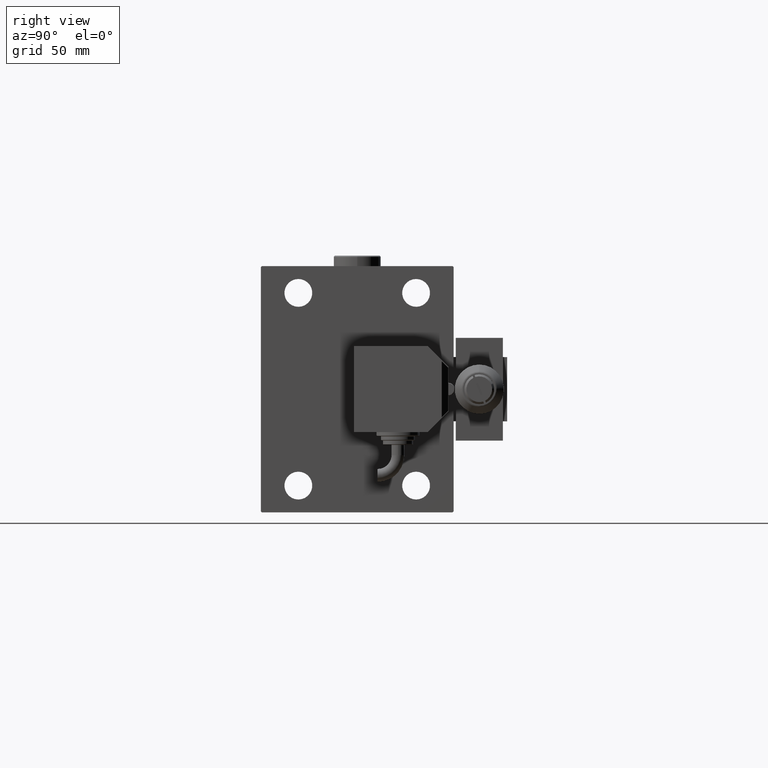
[diagram: clean part render]
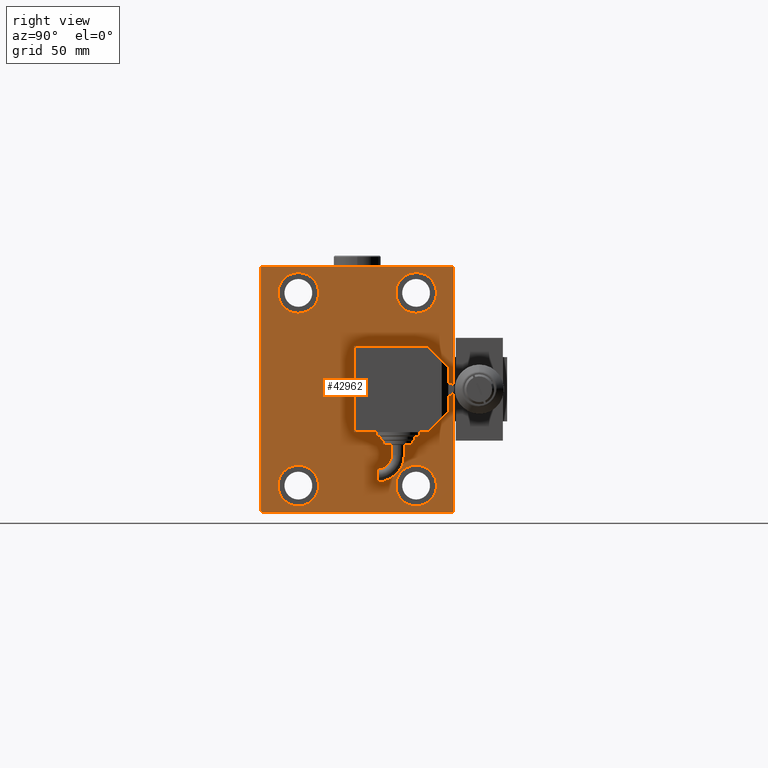
[diagram: same view with one face highlighted and labeled with its STEP entity id]
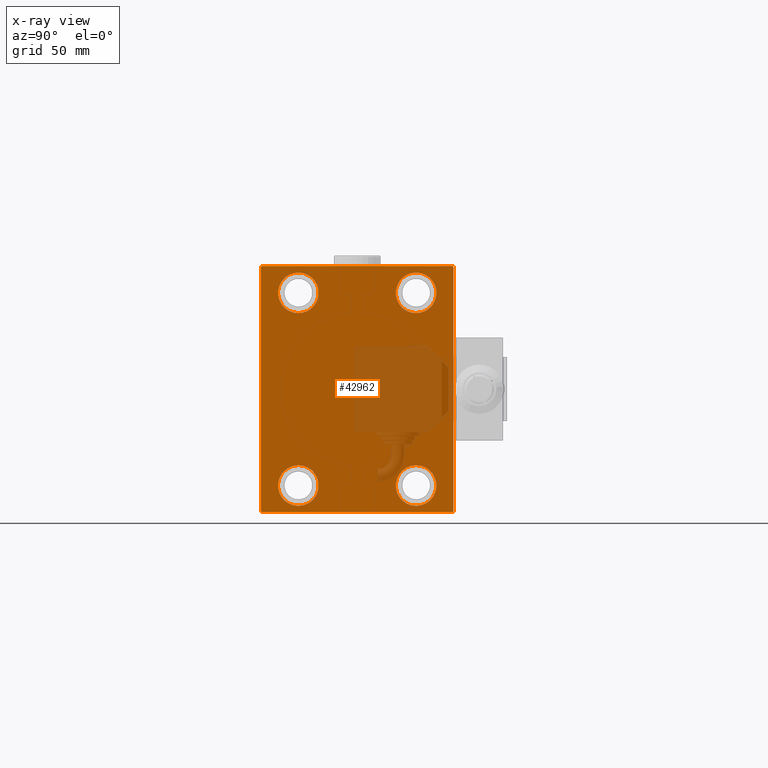
[diagram: x-ray of the same camera — body ghosted, the highlighted face saturated]
A machine part, right view. The second image highlights one B-rep face of the part: STEP entity #42962.
The next image is the same camera in x-ray: the body ghosted, the highlighted face saturated — about 21% of this face is hidden behind the body in this view.
In plain terms, the highlighted planar face has unit normal (1, 0, 0).
Its self-contained STEP definition (entity closure, byte-faithful):
#5 = DIRECTION ( 'NONE',  ( 0.000000000000000000, 0.000000000000000000, 1.000000000000000000 ) ) ;
#896 = EDGE_CURVE ( 'NONE', #46103, #5703, #50445, .T. ) ;
#2215 = EDGE_CURVE ( 'NONE', #25903, #21164, #19983, .T. ) ;
#2543 = CARTESIAN_POINT ( 'NONE',  ( 158.0000000000000000, -44.49999999999997158, 57.49999999999999289 ) ) ;
#2981 = DIRECTION ( 'NONE',  ( -1.000000000000000000, -0.000000000000000000, -0.000000000000000000 ) ) ;
#4071 = CARTESIAN_POINT ( 'NONE',  ( 158.0000000000000000, 27.49999999999998934, -54.49999999999998579 ) ) ;
#4680 = CARTESIAN_POINT ( 'NONE',  ( 158.0000000000000000, -27.49999999999998934, 45.00000000000000711 ) ) ;
#4756 = CARTESIAN_POINT ( 'NONE',  ( 158.0000000000000000, -51.00000000000001421, -51.00000000000001421 ) ) ;
#5328 = CARTESIAN_POINT ( 'NONE',  ( 158.0000000000000000, 51.00000000000001421, 51.00000000000001421 ) ) ;
#5703 = VERTEX_POINT ( 'NONE', #21470 ) ;
#5798 = CARTESIAN_POINT ( 'NONE',  ( 158.0000000000000000, 27.50000000000001066, 54.50000000000000711 ) ) ;
#5883 = EDGE_LOOP ( 'NONE', ( #27549, #22567 ) ) ;
#6451 = LINE ( 'NONE', #46433, #38698 ) ;
#6604 = CARTESIAN_POINT ( 'NONE',  ( 158.0000000000000000, 27.50000000000001066, 45.00000000000000711 ) ) ;
#6982 = CARTESIAN_POINT ( 'NONE',  ( 158.0000000000000000, -45.00000000000000000, 57.49999999999999289 ) ) ;
#7848 = VERTEX_POINT ( 'NONE', #35897 ) ;
#8698 = DIRECTION ( 'NONE',  ( 0.000000000000000000, -0.7071067811865474617, -0.7071067811865474617 ) ) ;
#8753 = CARTESIAN_POINT ( 'NONE',  ( 158.0000000000000000, -45.00000000000000000, -57.00000000000003553 ) ) ;
#8932 = DIRECTION ( 'NONE',  ( -0.000000000000000000, -0.7071067811865474617, 0.7071067811865474617 ) ) ;
#9602 = AXIS2_PLACEMENT_3D ( 'NONE', #29967, #33574, #49336 ) ;
#9881 = EDGE_CURVE ( 'NONE', #15833, #21481, #25196, .T. ) ;
#10931 = CARTESIAN_POINT ( 'NONE',  ( 158.0000000000000000, -27.50000000000000000, -44.99999999999998579 ) ) ;
#12192 = CARTESIAN_POINT ( 'NONE',  ( 158.0000000000000000, -45.00000000000000000, 56.99999999999999289 ) ) ;
#12211 = EDGE_CURVE ( 'NONE', #42855, #15833, #39368, .T. ) ;
#12528 = FACE_BOUND ( 'NONE', #44830, .T. ) ;
#13035 = CARTESIAN_POINT ( 'NONE',  ( 158.0000000000000000, 0.000000000000000000, 0.000000000000000000 ) ) ;
#13288 = DIRECTION ( 'NONE',  ( -1.000000000000000000, -0.000000000000000000, -0.000000000000000000 ) ) ;
#13897 = ORIENTED_EDGE ( 'NONE', *, *, #48367, .T. ) ;
#14081 = DIRECTION ( 'NONE',  ( 0.000000000000000000, 0.000000000000000000, 1.000000000000000000 ) ) ;
#14646 = CARTESIAN_POINT ( 'NONE',  ( 158.0000000000000000, 45.00000000000001421, -57.50000000000000711 ) ) ;
#15833 = VERTEX_POINT ( 'NONE', #2543 ) ;
#16483 = CARTESIAN_POINT ( 'NONE',  ( 158.0000000000000000, 27.49999999999998934, -44.99999999999998579 ) ) ;
#16797 = DIRECTION ( 'NONE',  ( -1.000000000000000000, -0.000000000000000000, -0.000000000000000000 ) ) ;
#17273 = CIRCLE ( 'NONE', #46110, 9.500000000000001776 ) ;
#17890 = VECTOR ( 'NONE', #44264, 1000.000000000000000 ) ;
#18277 = LINE ( 'NONE', #14646, #48692 ) ;
#18345 = EDGE_CURVE ( 'NONE', #25234, #32375, #29487, .T. ) ;
#18726 = DIRECTION ( 'NONE',  ( -1.000000000000000000, -0.000000000000000000, -0.000000000000000000 ) ) ;
#18790 = CARTESIAN_POINT ( 'NONE',  ( 158.0000000000000000, -44.50000000000002842, -57.50000000000000711 ) ) ;
#19078 = DIRECTION ( 'NONE',  ( 0.000000000000000000, 1.000000000000000000, 0.000000000000000000 ) ) ;
#19601 = DIRECTION ( 'NONE',  ( -1.000000000000000000, -0.000000000000000000, -0.000000000000000000 ) ) ;
#19790 = LINE ( 'NONE', #5328, #50200 ) ;
#19825 = VERTEX_POINT ( 'NONE', #8753 ) ;
#19982 = LINE ( 'NONE', #4756, #44530 ) ;
#19983 = CIRCLE ( 'NONE', #29888, 9.500000000000001776 ) ;
#20163 = EDGE_CURVE ( 'NONE', #20659, #40077, #23816, .T. ) ;
#20437 = EDGE_LOOP ( 'NONE', ( #38734, #13897 ) ) ;
#20659 = VERTEX_POINT ( 'NONE', #39790 ) ;
#20800 = CARTESIAN_POINT ( 'NONE',  ( 158.0000000000000000, 27.49999999999998934, -35.49999999999998579 ) ) ;
#21038 = FACE_OUTER_BOUND ( 'NONE', #48083, .T. ) ;
#21066 = AXIS2_PLACEMENT_3D ( 'NONE', #37816, #23096, #38830 ) ;
#21134 = VECTOR ( 'NONE', #8698, 1000.000000000000114 ) ;
#21148 = ORIENTED_EDGE ( 'NONE', *, *, #50627, .T. ) ;
#21164 = VERTEX_POINT ( 'NONE', #23100 ) ;
#21470 = CARTESIAN_POINT ( 'NONE',  ( 158.0000000000000000, -27.50000000000000000, -54.49999999999998579 ) ) ;
#21481 = VERTEX_POINT ( 'NONE', #12192 ) ;
#22036 = DIRECTION ( 'NONE',  ( 0.000000000000000000, 0.000000000000000000, 1.000000000000000000 ) ) ;
#22153 = AXIS2_PLACEMENT_3D ( 'NONE', #33431, #18726, #14081 ) ;
#22567 = ORIENTED_EDGE ( 'NONE', *, *, #37719, .T. ) ;
#23096 = DIRECTION ( 'NONE',  ( -1.000000000000000000, -0.000000000000000000, -0.000000000000000000 ) ) ;
#23100 = CARTESIAN_POINT ( 'NONE',  ( 158.0000000000000000, -27.49999999999998934, 54.50000000000000711 ) ) ;
#23228 = DIRECTION ( 'NONE',  ( 0.000000000000000000, 0.000000000000000000, -1.000000000000000000 ) ) ;
#23347 = EDGE_CURVE ( 'NONE', #19825, #31044, #19982, .T. ) ;
#23816 = CIRCLE ( 'NONE', #22153, 9.500000000000001776 ) ;
#24172 = EDGE_CURVE ( 'NONE', #37575, #46308, #18277, .T. ) ;
#24830 = ORIENTED_EDGE ( 'NONE', *, *, #27775, .T. ) ;
#24882 = AXIS2_PLACEMENT_3D ( 'NONE', #6604, #2981, #29819 ) ;
#25155 = CARTESIAN_POINT ( 'NONE',  ( 158.0000000000000000, -27.49999999999998934, 45.00000000000000711 ) ) ;
#25196 = LINE ( 'NONE', #48446, #21134 ) ;
#25234 = VERTEX_POINT ( 'NONE', #4071 ) ;
#25469 = CARTESIAN_POINT ( 'NONE',  ( 158.0000000000000000, 44.50000000000002842, 57.50000000000000711 ) ) ;
#25903 = VERTEX_POINT ( 'NONE', #28728 ) ;
#25915 = ORIENTED_EDGE ( 'NONE', *, *, #35328, .T. ) ;
#26286 = ORIENTED_EDGE ( 'NONE', *, *, #24172, .T. ) ;
#27087 = EDGE_CURVE ( 'NONE', #7848, #37575, #29552, .T. ) ;
#27549 = ORIENTED_EDGE ( 'NONE', *, *, #18345, .T. ) ;
#27775 = EDGE_CURVE ( 'NONE', #40077, #20659, #36446, .T. ) ;
#28515 = PLANE ( 'NONE',  #32877 ) ;
#28728 = CARTESIAN_POINT ( 'NONE',  ( 158.0000000000000000, -27.49999999999998934, 35.50000000000000711 ) ) ;
#29031 = FACE_BOUND ( 'NONE', #5883, .T. ) ;
#29487 = CIRCLE ( 'NONE', #36083, 9.500000000000001776 ) ;
#29552 = LINE ( 'NONE', #41438, #33083 ) ;
#29819 = DIRECTION ( 'NONE',  ( 0.000000000000000000, 0.000000000000000000, 1.000000000000000000 ) ) ;
#29887 = DIRECTION ( 'NONE',  ( 0.000000000000000000, -1.206764157201257045E-16, 1.000000000000000000 ) ) ;
#29888 = AXIS2_PLACEMENT_3D ( 'NONE', #4680, #16797, #36911 ) ;
#29967 = CARTESIAN_POINT ( 'NONE',  ( 158.0000000000000000, 27.49999999999998934, -44.99999999999998579 ) ) ;
#30451 = LINE ( 'NONE', #6982, #38764 ) ;
#31044 = VERTEX_POINT ( 'NONE', #18790 ) ;
#31702 = CARTESIAN_POINT ( 'NONE',  ( 158.0000000000000000, 45.00000000000000000, 57.00000000000000711 ) ) ;
#31828 = DIRECTION ( 'NONE',  ( -0.000000000000000000, 0.7071067811865474617, -0.7071067811865474617 ) ) ;
#31836 = CIRCLE ( 'NONE', #9602, 9.500000000000001776 ) ;
#32124 = FACE_BOUND ( 'NONE', #20437, .T. ) ;
#32375 = VERTEX_POINT ( 'NONE', #20800 ) ;
#32877 = AXIS2_PLACEMENT_3D ( 'NONE', #13035, #44021, #47893 ) ;
#33083 = VECTOR ( 'NONE', #49688, 1000.000000000000114 ) ;
#33431 = CARTESIAN_POINT ( 'NONE',  ( 158.0000000000000000, 27.50000000000001066, 45.00000000000000711 ) ) ;
#33574 = DIRECTION ( 'NONE',  ( -1.000000000000000000, -0.000000000000000000, -0.000000000000000000 ) ) ;
#34285 = ORIENTED_EDGE ( 'NONE', *, *, #23347, .T. ) ;
#35328 = EDGE_CURVE ( 'NONE', #5703, #46103, #43320, .T. ) ;
#35897 = CARTESIAN_POINT ( 'NONE',  ( 158.0000000000000000, 44.50000000000001421, -57.50000000000000711 ) ) ;
#36083 = AXIS2_PLACEMENT_3D ( 'NONE', #16483, #19601, #5 ) ;
#36446 = CIRCLE ( 'NONE', #24882, 9.500000000000001776 ) ;
#36911 = DIRECTION ( 'NONE',  ( 0.000000000000000000, 0.000000000000000000, 1.000000000000000000 ) ) ;
#37575 = VERTEX_POINT ( 'NONE', #50669 ) ;
#37719 = EDGE_CURVE ( 'NONE', #32375, #25234, #31836, .T. ) ;
#37816 = CARTESIAN_POINT ( 'NONE',  ( 158.0000000000000000, -27.50000000000000000, -44.99999999999998579 ) ) ;
#38698 = VECTOR ( 'NONE', #19078, 1000.000000000000000 ) ;
#38734 = ORIENTED_EDGE ( 'NONE', *, *, #2215, .T. ) ;
#38764 = VECTOR ( 'NONE', #23228, 1000.000000000000000 ) ;
#38830 = DIRECTION ( 'NONE',  ( 0.000000000000000000, 0.000000000000000000, 1.000000000000000000 ) ) ;
#39368 = LINE ( 'NONE', #39865, #17890 ) ;
#39790 = CARTESIAN_POINT ( 'NONE',  ( 158.0000000000000000, 27.50000000000001066, 35.50000000000000711 ) ) ;
#39865 = CARTESIAN_POINT ( 'NONE',  ( 158.0000000000000000, 45.00000000000000000, 57.50000000000000711 ) ) ;
#39889 = EDGE_LOOP ( 'NONE', ( #42779, #24830 ) ) ;
#40077 = VERTEX_POINT ( 'NONE', #5798 ) ;
#40678 = ORIENTED_EDGE ( 'NONE', *, *, #12211, .T. ) ;
#41152 = ORIENTED_EDGE ( 'NONE', *, *, #896, .T. ) ;
#41157 = DIRECTION ( 'NONE',  ( 0.000000000000000000, 0.000000000000000000, 1.000000000000000000 ) ) ;
#41438 = CARTESIAN_POINT ( 'NONE',  ( 158.0000000000000000, 51.00000000000001421, -51.00000000000001421 ) ) ;
#42423 = DIRECTION ( 'NONE',  ( -1.000000000000000000, -0.000000000000000000, -0.000000000000000000 ) ) ;
#42779 = ORIENTED_EDGE ( 'NONE', *, *, #20163, .T. ) ;
#42855 = VERTEX_POINT ( 'NONE', #25469 ) ;
#42962 = ADVANCED_FACE ( 'NONE', ( #29031, #32124, #44271, #12528, #21038 ), #28515, .T. ) ;
#43320 = CIRCLE ( 'NONE', #21066, 9.500000000000001776 ) ;
#44021 = DIRECTION ( 'NONE',  ( 1.000000000000000000, 0.000000000000000000, 0.000000000000000000 ) ) ;
#44264 = DIRECTION ( 'NONE',  ( 0.000000000000000000, -1.000000000000000000, -1.541976423090495387E-16 ) ) ;
#44271 = FACE_BOUND ( 'NONE', #39889, .T. ) ;
#44530 = VECTOR ( 'NONE', #31828, 1000.000000000000114 ) ;
#44830 = EDGE_LOOP ( 'NONE', ( #25915, #41152 ) ) ;
#46103 = VERTEX_POINT ( 'NONE', #49553 ) ;
#46110 = AXIS2_PLACEMENT_3D ( 'NONE', #25155, #13288, #41157 ) ;
#46308 = VERTEX_POINT ( 'NONE', #31702 ) ;
#46328 = AXIS2_PLACEMENT_3D ( 'NONE', #10931, #42423, #22036 ) ;
#46433 = CARTESIAN_POINT ( 'NONE',  ( 158.0000000000000000, -45.00000000000000000, -57.50000000000000711 ) ) ;
#46667 = ORIENTED_EDGE ( 'NONE', *, *, #48714, .T. ) ;
#46694 = EDGE_CURVE ( 'NONE', #46308, #42855, #19790, .T. ) ;
#47249 = ORIENTED_EDGE ( 'NONE', *, *, #46694, .T. ) ;
#47893 = DIRECTION ( 'NONE',  ( 0.000000000000000000, 0.000000000000000000, -1.000000000000000000 ) ) ;
#48083 = EDGE_LOOP ( 'NONE', ( #40678, #48839, #21148, #34285, #46667, #48962, #26286, #47249 ) ) ;
#48367 = EDGE_CURVE ( 'NONE', #21164, #25903, #17273, .T. ) ;
#48446 = CARTESIAN_POINT ( 'NONE',  ( 158.0000000000000000, -51.00000000000000000, 51.00000000000000000 ) ) ;
#48692 = VECTOR ( 'NONE', #29887, 1000.000000000000000 ) ;
#48714 = EDGE_CURVE ( 'NONE', #31044, #7848, #6451, .T. ) ;
#48839 = ORIENTED_EDGE ( 'NONE', *, *, #9881, .T. ) ;
#48962 = ORIENTED_EDGE ( 'NONE', *, *, #27087, .T. ) ;
#49336 = DIRECTION ( 'NONE',  ( 0.000000000000000000, 0.000000000000000000, 1.000000000000000000 ) ) ;
#49553 = CARTESIAN_POINT ( 'NONE',  ( 158.0000000000000000, -27.50000000000000000, -35.49999999999998579 ) ) ;
#49688 = DIRECTION ( 'NONE',  ( -0.000000000000000000, 0.7071067811865474617, 0.7071067811865474617 ) ) ;
#50200 = VECTOR ( 'NONE', #8932, 1000.000000000000114 ) ;
#50445 = CIRCLE ( 'NONE', #46328, 9.500000000000001776 ) ;
#50627 = EDGE_CURVE ( 'NONE', #21481, #19825, #30451, .T. ) ;
#50669 = CARTESIAN_POINT ( 'NONE',  ( 158.0000000000000000, 45.00000000000001421, -57.00000000000003553 ) ) ;